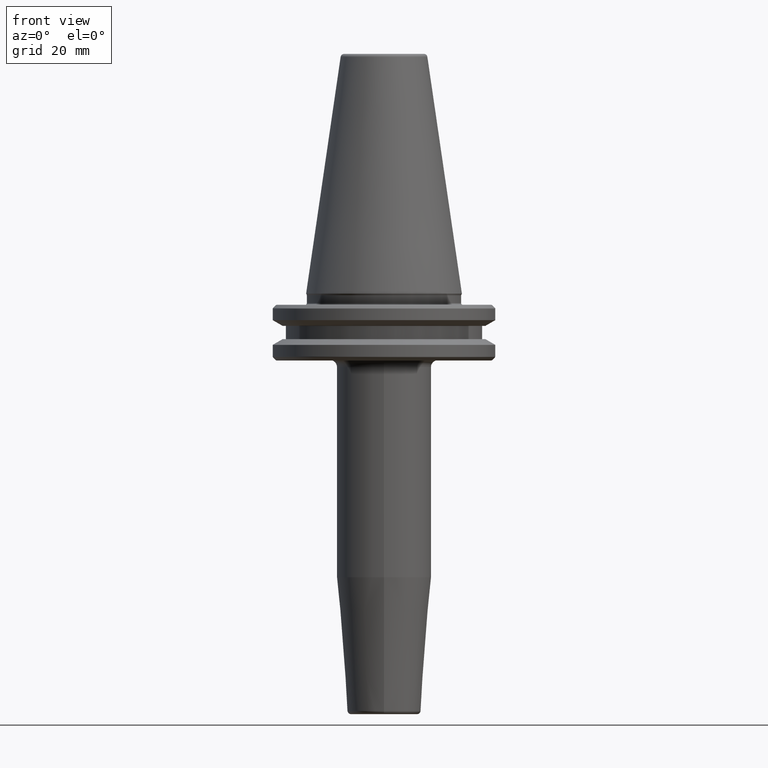
[diagram: clean part render]
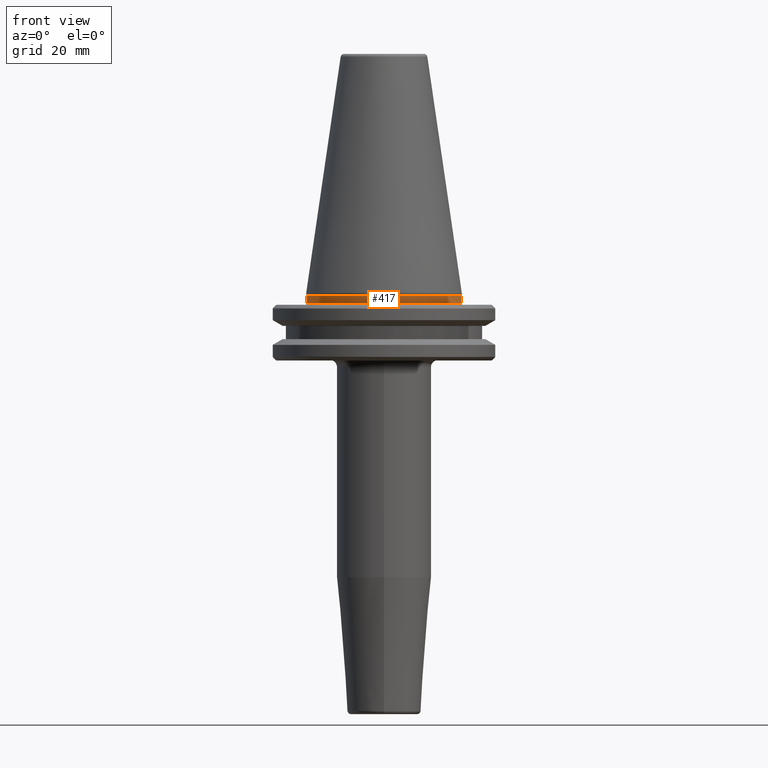
[diagram: same view with one face highlighted and labeled with its STEP entity id]
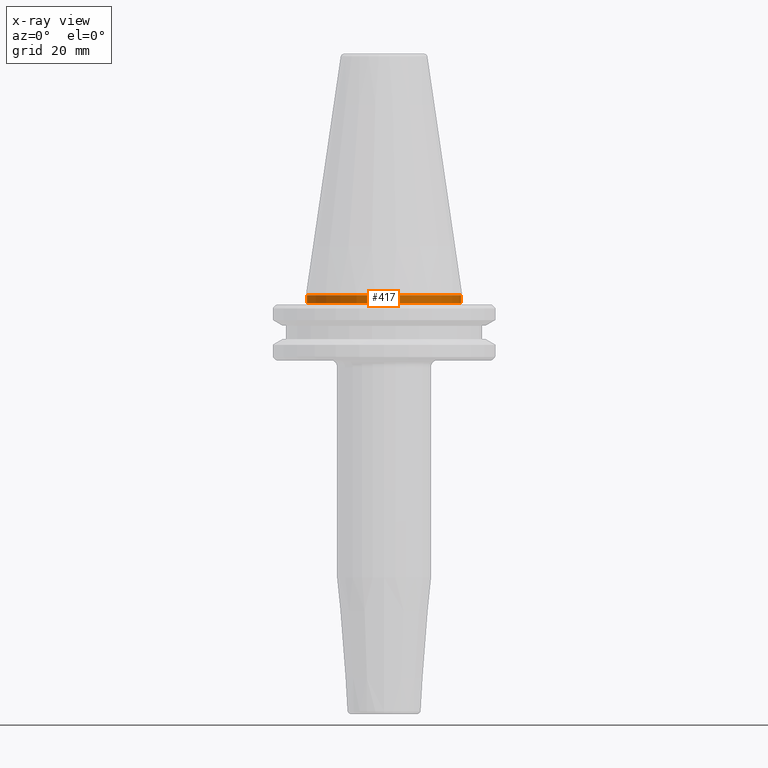
[diagram: x-ray of the same camera — body ghosted, the highlighted face saturated]
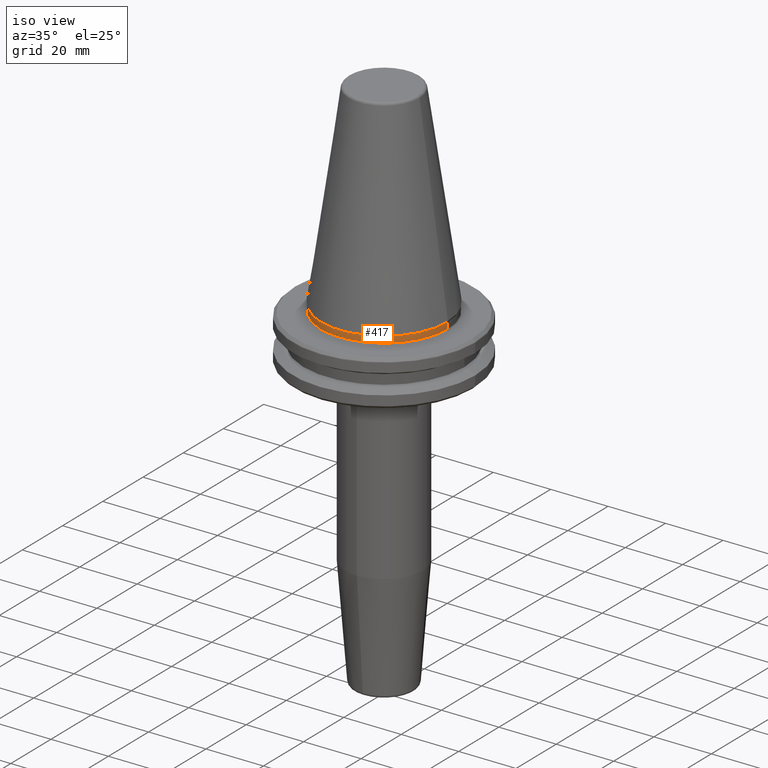
[diagram: same view with one face highlighted and labeled with its STEP entity id]
A machine part, front view. The second image highlights one B-rep face of the part: STEP entity #417.
The next image is the same camera in x-ray: the body ghosted, the highlighted face saturated — about 0% of this face is hidden behind the body in this view.
A second angle (iso view) of the same face is appended — the face is thin or edge-on in the first view.
In plain terms, the highlighted cylindrical surface (partial cylindrical patch) has radius 22 mm, axis along (-0, -0, 1).
Its self-contained STEP definition (entity closure, byte-faithful):
#39 = FACE_OUTER_BOUND ( 'NONE', #1076, .T. ) ;
#67 = CARTESIAN_POINT ( 'NONE',  ( 22.00000000000000000, 0.0000000000000000000, -0.4825140571146635500 ) ) ;
#74 = CIRCLE ( 'NONE', #284, 22.00000000000000400 ) ;
#91 = DIRECTION ( 'NONE',  ( -0.0000000000000000000, -0.0000000000000000000, 1.000000000000000000 ) ) ;
#140 = VECTOR ( 'NONE', #960, 1000.000000000000000 ) ;
#152 = EDGE_CURVE ( 'NONE', #1249, #742, #405, .T. ) ;
#160 = ORIENTED_EDGE ( 'NONE', *, *, #239, .T. ) ;
#170 = EDGE_CURVE ( 'NONE', #490, #786, #720, .T. ) ;
#239 = EDGE_CURVE ( 'NONE', #1249, #490, #74, .T. ) ;
#284 = AXIS2_PLACEMENT_3D ( 'NONE', #791, #610, #397 ) ;
#397 = DIRECTION ( 'NONE',  ( 1.000000000000000000, 0.0000000000000000000, 0.0000000000000000000 ) ) ;
#405 = LINE ( 'NONE', #1148, #140 ) ;
#412 = CARTESIAN_POINT ( 'NONE',  ( 0.0000000000000000000, 0.0000000000000000000, -0.4825140571146635500 ) ) ;
#417 = ADVANCED_FACE ( 'NONE', ( #39 ), #775, .T. ) ;
#490 = VERTEX_POINT ( 'NONE', #736 ) ;
#576 = AXIS2_PLACEMENT_3D ( 'NONE', #594, #1082, #700 ) ;
#588 = ORIENTED_EDGE ( 'NONE', *, *, #810, .F. ) ;
#594 = CARTESIAN_POINT ( 'NONE',  ( 0.0000000000000000000, 0.0000000000000000000, 113.5216080541959500 ) ) ;
#610 = DIRECTION ( 'NONE',  ( -0.0000000000000000000, -0.0000000000000000000, 1.000000000000000000 ) ) ;
#630 = VECTOR ( 'NONE', #91, 1000.000000000000000 ) ;
#700 = DIRECTION ( 'NONE',  ( 1.000000000000000000, 0.0000000000000000000, 0.0000000000000000000 ) ) ;
#720 = LINE ( 'NONE', #1240, #630 ) ;
#723 = CARTESIAN_POINT ( 'NONE',  ( -22.00000000000000400, 2.724839128102861000E-015, -2.699999999999994000 ) ) ;
#736 = CARTESIAN_POINT ( 'NONE',  ( 22.00000000000000400, 0.0000000000000000000, -2.699999999999994000 ) ) ;
#742 = VERTEX_POINT ( 'NONE', #1021 ) ;
#775 = CYLINDRICAL_SURFACE ( 'NONE', #576, 22.00000000000000000 ) ;
#786 = VERTEX_POINT ( 'NONE', #67 ) ;
#791 = CARTESIAN_POINT ( 'NONE',  ( 0.0000000000000000000, 0.0000000000000000000, -2.699999999999994000 ) ) ;
#810 = EDGE_CURVE ( 'NONE', #742, #786, #840, .T. ) ;
#840 = CIRCLE ( 'NONE', #928, 22.00000000000000000 ) ;
#928 = AXIS2_PLACEMENT_3D ( 'NONE', #412, #1045, #1146 ) ;
#952 = ORIENTED_EDGE ( 'NONE', *, *, #170, .T. ) ;
#960 = DIRECTION ( 'NONE',  ( -0.0000000000000000000, -0.0000000000000000000, 1.000000000000000000 ) ) ;
#1021 = CARTESIAN_POINT ( 'NONE',  ( -22.00000000000000000, 2.694222958124176800E-015, -0.4825140571146635500 ) ) ;
#1045 = DIRECTION ( 'NONE',  ( -0.0000000000000000000, -0.0000000000000000000, 1.000000000000000000 ) ) ;
#1076 = EDGE_LOOP ( 'NONE', ( #1250, #160, #952, #588 ) ) ;
#1082 = DIRECTION ( 'NONE',  ( -0.0000000000000000000, -0.0000000000000000000, 1.000000000000000000 ) ) ;
#1146 = DIRECTION ( 'NONE',  ( 1.000000000000000000, 0.0000000000000000000, 0.0000000000000000000 ) ) ;
#1148 = CARTESIAN_POINT ( 'NONE',  ( -22.00000000000000000, 2.694222958124176800E-015, 113.5216080541959500 ) ) ;
#1240 = CARTESIAN_POINT ( 'NONE',  ( 22.00000000000000000, 0.0000000000000000000, 113.5216080541959500 ) ) ;
#1249 = VERTEX_POINT ( 'NONE', #723 ) ;
#1250 = ORIENTED_EDGE ( 'NONE', *, *, #152, .F. ) ;